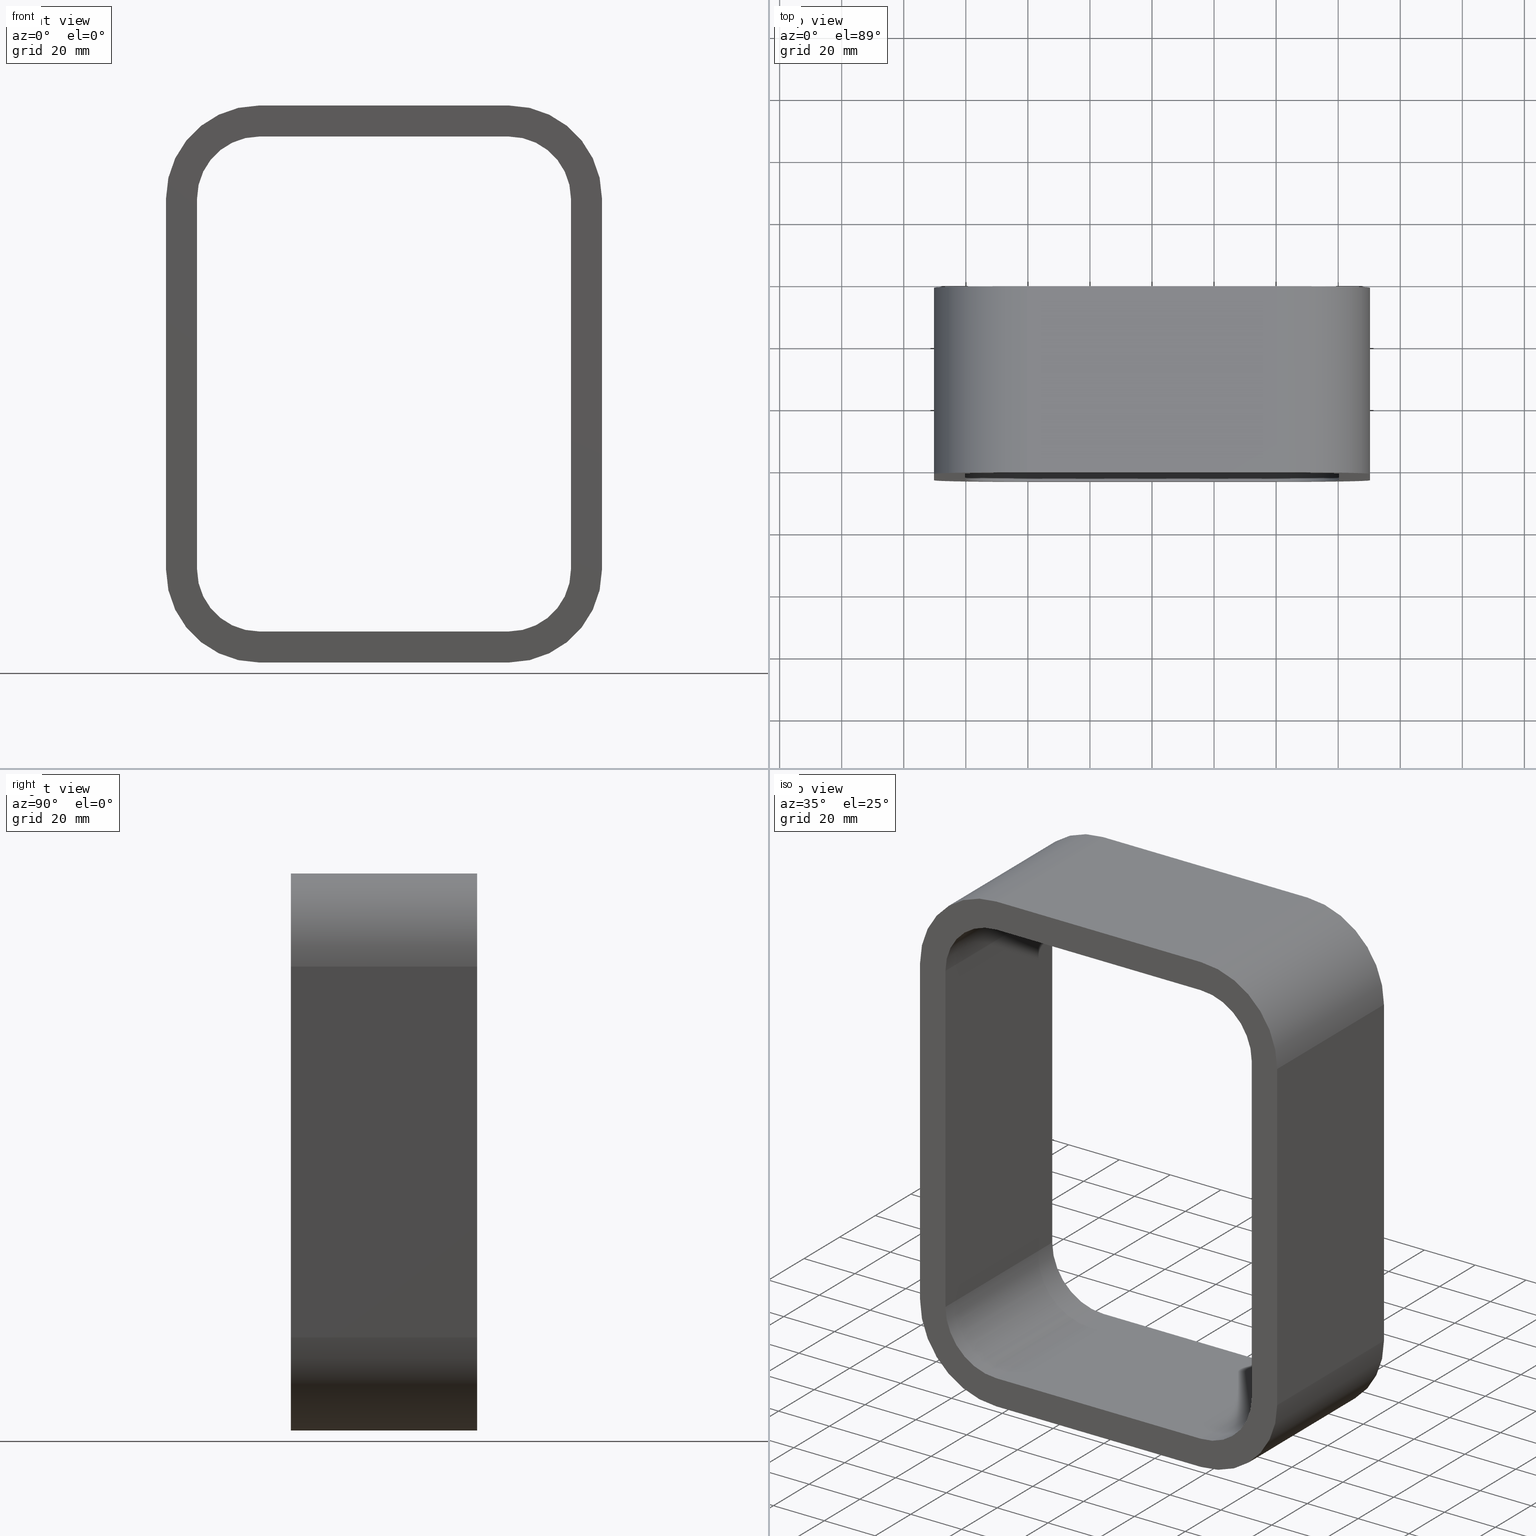
[diagram: canonical four-view strip — front | top / right | iso, engineering-drawing reading convention]
A machine part, canonical four-view strip (front | top / right | iso — engineering-drawing reading convention). The complete STEP part file that produces these views, byte-faithful:
ISO-10303-21;
HEADER;
/****************************************************************
 * Generated by software with PDElib inside                    *
 * PDElib Version v51a, created Wed 11/30/2011                  *
 * ITI Transcendata (http://www.transcendata.com/)              *
 ****************************************************************/
FILE_DESCRIPTION((''),'2;1');
FILE_NAME('N:\\Projects\\Ongoing_Projects\\12403 Transit Designer\\Product-data\\Product Data\\Transit designer Cad Generator\\CreatedFiles\\STEP\\SRCR20-4X1.stp','2014-10-31T08:48:50',(''),(''),'Autodesk Inventor 2013','Autodesk Inventor 2013','');
FILE_SCHEMA(('AUTOMOTIVE_DESIGN { 1 0 10303 214 1 1 1 1 }'));
ENDSEC;
DATA;
#5=APPLICATION_CONTEXT('automotive design');
#6=APPLICATION_PROTOCOL_DEFINITION('International Standard','automotive_design',2001,#5);
#7=PRODUCT_CONTEXT('',#5,'mechanical');
#8=PRODUCT('GH-ISO','GH-ISO',$,(#7));
#9=PRODUCT_RELATED_PRODUCT_CATEGORY('part',$,(#8));
#10=PRODUCT_DEFINITION_FORMATION('',$,#8);
#11=PRODUCT_DEFINITION_CONTEXT('part definition',#5,'design');
#12=PRODUCT_DEFINITION('',$,#10,#11);
#18=(NAMED_UNIT(*)PLANE_ANGLE_UNIT()SI_UNIT($,.RADIAN.));
#19=DIMENSIONAL_EXPONENTS(0.0,0.0,0.0,0.0,0.0,0.0,0.0);
#20=PLANE_ANGLE_MEASURE_WITH_UNIT(PLANE_ANGLE_MEASURE(0.0174532925),#18);
#24=(CONVERSION_BASED_UNIT('DEGREE',#20)NAMED_UNIT(#19)PLANE_ANGLE_UNIT());
#28=(NAMED_UNIT(*)SI_UNIT($,.STERADIAN.)SOLID_ANGLE_UNIT());
#32=(LENGTH_UNIT()NAMED_UNIT(*)SI_UNIT(.MILLI.,.METRE.));
#34=UNCERTAINTY_MEASURE_WITH_UNIT(LENGTH_MEASURE(0.01),#32,'DISTANCE_ACCURACY_VALUE','');
#36=(GEOMETRIC_REPRESENTATION_CONTEXT(3)GLOBAL_UNCERTAINTY_ASSIGNED_CONTEXT((#34))GLOBAL_UNIT_ASSIGNED_CONTEXT((#24,#28,#32))REPRESENTATION_CONTEXT('None','None'));
#37=AXIS2_PLACEMENT_3D('',#38,#39,#40);
#38=CARTESIAN_POINT('',(0.0,0.0,0.0));
#39=DIRECTION('',(0.0,0.0,1.0));
#40=DIRECTION('',(1.0,0.0,0.0));
#41=SHAPE_REPRESENTATION('',(#37),#36);
#42=PRODUCT_DEFINITION_SHAPE('','',#12);
#43=SHAPE_DEFINITION_REPRESENTATION(#42,#41);
#49=(NAMED_UNIT(*)PLANE_ANGLE_UNIT()SI_UNIT($,.RADIAN.));
#50=DIMENSIONAL_EXPONENTS(0.0,0.0,0.0,0.0,0.0,0.0,0.0);
#51=PLANE_ANGLE_MEASURE_WITH_UNIT(PLANE_ANGLE_MEASURE(0.0174532925),#49);
#55=(CONVERSION_BASED_UNIT('DEGREE',#51)NAMED_UNIT(#50)PLANE_ANGLE_UNIT());
#59=(NAMED_UNIT(*)SI_UNIT($,.STERADIAN.)SOLID_ANGLE_UNIT());
#63=(LENGTH_UNIT()NAMED_UNIT(*)SI_UNIT(.MILLI.,.METRE.));
#65=UNCERTAINTY_MEASURE_WITH_UNIT(LENGTH_MEASURE(0.000001),#63,'DISTANCE_ACCURACY_VALUE','');
#67=(GEOMETRIC_REPRESENTATION_CONTEXT(3)GLOBAL_UNCERTAINTY_ASSIGNED_CONTEXT((#65))GLOBAL_UNIT_ASSIGNED_CONTEXT((#55,#59,#63))REPRESENTATION_CONTEXT('','3D'));
#68=CARTESIAN_POINT('',(40.249999999999993,0.0,-59.750000000000014));
#69=DIRECTION('',(0.0,1.0,0.0));
#70=DIRECTION('',(0.707106781186547,0.0,-0.707106781186547));
#71=AXIS2_PLACEMENT_3D('',#68,#69,#70);
#72=CYLINDRICAL_SURFACE('',#71,30.000000000000004);
#73=CARTESIAN_POINT('',(40.249999999999993,57.0,-89.750000000000014));
#74=VERTEX_POINT('',#73);
#75=CARTESIAN_POINT('',(70.25,57.0,-59.750000000000014));
#76=VERTEX_POINT('',#75);
#77=CARTESIAN_POINT('',(40.249999999999993,57.0,-59.750000000000014));
#78=DIRECTION('',(0.0,-1.0,0.0));
#79=DIRECTION('',(0.707106781186547,0.0,-0.707106781186547));
#80=AXIS2_PLACEMENT_3D('',#77,#78,#79);
#81=CIRCLE('',#80,30.0);
#82=EDGE_CURVE('',#74,#76,#81,.T.);
#83=ORIENTED_EDGE('',*,*,#82,.T.);
#84=CARTESIAN_POINT('',(70.25,-3.0,-59.750000000000014));
#85=VERTEX_POINT('',#84);
#86=CARTESIAN_POINT('',(70.25,57.0,-59.750000000000014));
#87=DIRECTION('',(0.0,-1.0,0.0));
#88=VECTOR('',#87,60.0);
#89=LINE('',#86,#88);
#90=EDGE_CURVE('',#76,#85,#89,.T.);
#91=ORIENTED_EDGE('',*,*,#90,.T.);
#92=CARTESIAN_POINT('',(40.249999999999993,-3.0,-89.750000000000014));
#93=VERTEX_POINT('',#92);
#94=CARTESIAN_POINT('',(40.249999999999993,-3.0,-59.750000000000014));
#95=DIRECTION('',(0.0,1.0,0.0));
#96=DIRECTION('',(0.707106781186547,0.0,-0.707106781186547));
#97=AXIS2_PLACEMENT_3D('',#94,#95,#96);
#98=CIRCLE('',#97,30.0);
#99=EDGE_CURVE('',#85,#93,#98,.T.);
#100=ORIENTED_EDGE('',*,*,#99,.T.);
#101=CARTESIAN_POINT('',(40.249999999999993,-3.0,-89.750000000000014));
#102=DIRECTION('',(0.0,1.0,0.0));
#103=VECTOR('',#102,60.0);
#104=LINE('',#101,#103);
#105=EDGE_CURVE('',#93,#74,#104,.T.);
#106=ORIENTED_EDGE('',*,*,#105,.T.);
#107=EDGE_LOOP('',(#83,#91,#100,#106));
#108=FACE_OUTER_BOUND('',#107,.T.);
#109=ADVANCED_FACE('',(#108),#72,.T.);
#110=CARTESIAN_POINT('',(-8.611167E-015,-3.0,0.0));
#111=DIRECTION('',(0.0,1.0,0.0));
#112=DIRECTION('',(0.0,0.0,1.0));
#113=AXIS2_PLACEMENT_3D('',#110,#111,#112);
#114=PLANE('',#113);
#115=ORIENTED_EDGE('',*,*,#99,.F.);
#116=CARTESIAN_POINT('',(70.25,-3.0,59.750000000000014));
#117=VERTEX_POINT('',#116);
#118=CARTESIAN_POINT('',(70.25,-3.0,-59.750000000000014));
#119=DIRECTION('',(0.0,0.0,1.0));
#120=VECTOR('',#119,119.50000000000003);
#121=LINE('',#118,#120);
#122=EDGE_CURVE('',#85,#117,#121,.T.);
#123=ORIENTED_EDGE('',*,*,#122,.T.);
#124=CARTESIAN_POINT('',(40.249999999999993,-3.0,89.750000000000014));
#125=VERTEX_POINT('',#124);
#126=CARTESIAN_POINT('',(40.249999999999993,-3.0,59.750000000000014));
#127=DIRECTION('',(0.0,1.0,0.0));
#128=DIRECTION('',(0.707106781186547,0.0,0.707106781186547));
#129=AXIS2_PLACEMENT_3D('',#126,#127,#128);
#130=CIRCLE('',#129,30.0);
#131=EDGE_CURVE('',#125,#117,#130,.T.);
#132=ORIENTED_EDGE('',*,*,#131,.F.);
#133=CARTESIAN_POINT('',(-40.250000000000014,-3.0,89.750000000000014));
#134=VERTEX_POINT('',#133);
#135=CARTESIAN_POINT('',(40.249999999999986,-3.0,89.750000000000014));
#136=DIRECTION('',(-1.0,0.0,0.0));
#137=VECTOR('',#136,80.5);
#138=LINE('',#135,#137);
#139=EDGE_CURVE('',#125,#134,#138,.T.);
#140=ORIENTED_EDGE('',*,*,#139,.T.);
#141=CARTESIAN_POINT('',(-70.250000000000014,-3.0,59.750000000000014));
#142=VERTEX_POINT('',#141);
#143=CARTESIAN_POINT('',(-40.250000000000014,-3.0,59.750000000000014));
#144=DIRECTION('',(0.0,1.0,0.0));
#145=DIRECTION('',(-0.707106781186547,0.0,0.707106781186547));
#146=AXIS2_PLACEMENT_3D('',#143,#144,#145);
#147=CIRCLE('',#146,30.0);
#148=EDGE_CURVE('',#142,#134,#147,.T.);
#149=ORIENTED_EDGE('',*,*,#148,.F.);
#150=CARTESIAN_POINT('',(-70.250000000000014,-3.0,-59.750000000000014));
#151=VERTEX_POINT('',#150);
#152=CARTESIAN_POINT('',(-70.250000000000014,-3.0,59.750000000000014));
#153=DIRECTION('',(0.0,0.0,-1.0));
#154=VECTOR('',#153,119.50000000000003);
#155=LINE('',#152,#154);
#156=EDGE_CURVE('',#142,#151,#155,.T.);
#157=ORIENTED_EDGE('',*,*,#156,.T.);
#158=CARTESIAN_POINT('',(-40.250000000000014,-3.0,-89.750000000000014));
#159=VERTEX_POINT('',#158);
#160=CARTESIAN_POINT('',(-40.250000000000014,-3.0,-59.750000000000014));
#161=DIRECTION('',(0.0,1.0,0.0));
#162=DIRECTION('',(-0.707106781186547,0.0,-0.707106781186547));
#163=AXIS2_PLACEMENT_3D('',#160,#161,#162);
#164=CIRCLE('',#163,30.0);
#165=EDGE_CURVE('',#159,#151,#164,.T.);
#166=ORIENTED_EDGE('',*,*,#165,.F.);
#167=CARTESIAN_POINT('',(-40.25,-3.0,-89.750000000000014));
#168=DIRECTION('',(1.0,0.0,0.0));
#169=VECTOR('',#168,80.5);
#170=LINE('',#167,#169);
#171=EDGE_CURVE('',#159,#93,#170,.T.);
#172=ORIENTED_EDGE('',*,*,#171,.T.);
#173=EDGE_LOOP('',(#115,#123,#132,#140,#149,#157,#166,#172));
#174=FACE_OUTER_BOUND('',#173,.T.);
#175=CARTESIAN_POINT('',(60.25,-3.0,59.750000000000014));
#176=VERTEX_POINT('',#175);
#177=CARTESIAN_POINT('',(60.25,-3.0,-59.75));
#178=VERTEX_POINT('',#177);
#179=CARTESIAN_POINT('',(60.25,-3.0,59.750000000000014));
#180=DIRECTION('',(0.0,0.0,-1.0));
#181=VECTOR('',#180,119.5);
#182=LINE('',#179,#181);
#183=EDGE_CURVE('',#176,#178,#182,.T.);
#184=ORIENTED_EDGE('',*,*,#183,.T.);
#185=CARTESIAN_POINT('',(40.25,-3.0,-79.75));
#186=VERTEX_POINT('',#185);
#187=CARTESIAN_POINT('',(40.25,-3.0,-59.75));
#188=DIRECTION('',(0.0,-1.0,0.0));
#189=DIRECTION('',(0.707106781186547,0.0,-0.707106781186547));
#190=AXIS2_PLACEMENT_3D('',#187,#188,#189);
#191=CIRCLE('',#190,19.999999999999996);
#192=EDGE_CURVE('',#186,#178,#191,.T.);
#193=ORIENTED_EDGE('',*,*,#192,.F.);
#194=CARTESIAN_POINT('',(-40.25,-3.0,-79.75));
#195=VERTEX_POINT('',#194);
#196=CARTESIAN_POINT('',(40.25,-3.0,-79.75));
#197=DIRECTION('',(-1.0,0.0,0.0));
#198=VECTOR('',#197,80.5);
#199=LINE('',#196,#198);
#200=EDGE_CURVE('',#186,#195,#199,.T.);
#201=ORIENTED_EDGE('',*,*,#200,.T.);
#202=CARTESIAN_POINT('',(-60.250000000000014,-3.0,-59.75));
#203=VERTEX_POINT('',#202);
#204=CARTESIAN_POINT('',(-40.25,-3.0,-59.75));
#205=DIRECTION('',(0.0,-1.0,0.0));
#206=DIRECTION('',(-0.707106781186547,0.0,-0.707106781186547));
#207=AXIS2_PLACEMENT_3D('',#204,#205,#206);
#208=CIRCLE('',#207,19.999999999999996);
#209=EDGE_CURVE('',#203,#195,#208,.T.);
#210=ORIENTED_EDGE('',*,*,#209,.F.);
#211=CARTESIAN_POINT('',(-60.250000000000014,-3.0,59.750000000000021));
#212=VERTEX_POINT('',#211);
#213=CARTESIAN_POINT('',(-60.250000000000014,-3.0,-59.75));
#214=DIRECTION('',(0.0,0.0,1.0));
#215=VECTOR('',#214,119.50000000000003);
#216=LINE('',#213,#215);
#217=EDGE_CURVE('',#203,#212,#216,.T.);
#218=ORIENTED_EDGE('',*,*,#217,.T.);
#219=CARTESIAN_POINT('',(-40.250000000000014,-3.0,79.750000000000014));
#220=VERTEX_POINT('',#219);
#221=CARTESIAN_POINT('',(-40.250000000000014,-3.0,59.750000000000014));
#222=DIRECTION('',(0.0,-1.0,0.0));
#223=DIRECTION('',(-0.707106781186547,0.0,0.707106781186547));
#224=AXIS2_PLACEMENT_3D('',#221,#222,#223);
#225=CIRCLE('',#224,19.999999999999996);
#226=EDGE_CURVE('',#220,#212,#225,.T.);
#227=ORIENTED_EDGE('',*,*,#226,.F.);
#228=CARTESIAN_POINT('',(40.25,-3.0,79.750000000000014));
#229=VERTEX_POINT('',#228);
#230=CARTESIAN_POINT('',(-40.250000000000014,-3.0,79.750000000000014));
#231=DIRECTION('',(1.0,0.0,0.0));
#232=VECTOR('',#231,80.500000000000014);
#233=LINE('',#230,#232);
#234=EDGE_CURVE('',#220,#229,#233,.T.);
#235=ORIENTED_EDGE('',*,*,#234,.T.);
#236=CARTESIAN_POINT('',(40.25,-3.0,59.750000000000014));
#237=DIRECTION('',(0.0,-1.0,0.0));
#238=DIRECTION('',(0.707106781186547,0.0,0.707106781186547));
#239=AXIS2_PLACEMENT_3D('',#236,#237,#238);
#240=CIRCLE('',#239,19.999999999999996);
#241=EDGE_CURVE('',#176,#229,#240,.T.);
#242=ORIENTED_EDGE('',*,*,#241,.F.);
#243=EDGE_LOOP('',(#184,#193,#201,#210,#218,#227,#235,#242));
#244=FACE_BOUND('',#243,.T.);
#245=ADVANCED_FACE('',(#174,#244),#114,.F.);
#246=CARTESIAN_POINT('',(70.25,0.0,89.750000000000014));
#247=DIRECTION('',(1.0,0.0,0.0));
#248=DIRECTION('',(0.0,0.0,-1.0));
#249=AXIS2_PLACEMENT_3D('',#246,#247,#248);
#250=PLANE('',#249);
#251=ORIENTED_EDGE('',*,*,#90,.F.);
#252=CARTESIAN_POINT('',(70.25,57.0,59.750000000000014));
#253=VERTEX_POINT('',#252);
#254=CARTESIAN_POINT('',(70.25,57.0,59.750000000000014));
#255=DIRECTION('',(0.0,0.0,-1.0));
#256=VECTOR('',#255,119.50000000000003);
#257=LINE('',#254,#256);
#258=EDGE_CURVE('',#253,#76,#257,.T.);
#259=ORIENTED_EDGE('',*,*,#258,.F.);
#260=CARTESIAN_POINT('',(70.25,-3.0,59.750000000000014));
#261=DIRECTION('',(0.0,1.0,0.0));
#262=VECTOR('',#261,60.0);
#263=LINE('',#260,#262);
#264=EDGE_CURVE('',#117,#253,#263,.T.);
#265=ORIENTED_EDGE('',*,*,#264,.F.);
#266=ORIENTED_EDGE('',*,*,#122,.F.);
#267=EDGE_LOOP('',(#251,#259,#265,#266));
#268=FACE_OUTER_BOUND('',#267,.T.);
#269=ADVANCED_FACE('',(#268),#250,.T.);
#270=CARTESIAN_POINT('',(40.249999999999993,0.0,59.750000000000014));
#271=DIRECTION('',(0.0,-1.0,0.0));
#272=DIRECTION('',(0.707106781186547,0.0,0.707106781186547));
#273=AXIS2_PLACEMENT_3D('',#270,#271,#272);
#274=CYLINDRICAL_SURFACE('',#273,30.000000000000004);
#275=ORIENTED_EDGE('',*,*,#131,.T.);
#276=ORIENTED_EDGE('',*,*,#264,.T.);
#277=CARTESIAN_POINT('',(40.249999999999993,57.0,89.750000000000014));
#278=VERTEX_POINT('',#277);
#279=CARTESIAN_POINT('',(40.249999999999993,57.0,59.750000000000014));
#280=DIRECTION('',(0.0,-1.0,0.0));
#281=DIRECTION('',(0.707106781186547,0.0,0.707106781186547));
#282=AXIS2_PLACEMENT_3D('',#279,#280,#281);
#283=CIRCLE('',#282,30.0);
#284=EDGE_CURVE('',#253,#278,#283,.T.);
#285=ORIENTED_EDGE('',*,*,#284,.T.);
#286=CARTESIAN_POINT('',(40.249999999999993,57.0,89.750000000000014));
#287=DIRECTION('',(0.0,-1.0,0.0));
#288=VECTOR('',#287,60.0);
#289=LINE('',#286,#288);
#290=EDGE_CURVE('',#278,#125,#289,.T.);
#291=ORIENTED_EDGE('',*,*,#290,.T.);
#292=EDGE_LOOP('',(#275,#276,#285,#291));
#293=FACE_OUTER_BOUND('',#292,.T.);
#294=ADVANCED_FACE('',(#293),#274,.T.);
#295=CARTESIAN_POINT('',(-40.250000000000014,0.0,-59.750000000000014));
#296=DIRECTION('',(0.0,1.0,0.0));
#297=DIRECTION('',(-0.707106781186547,0.0,-0.707106781186547));
#298=AXIS2_PLACEMENT_3D('',#295,#296,#297);
#299=CYLINDRICAL_SURFACE('',#298,30.000000000000004);
#300=CARTESIAN_POINT('',(-70.250000000000014,57.0,-59.750000000000014));
#301=VERTEX_POINT('',#300);
#302=CARTESIAN_POINT('',(-40.250000000000014,57.0,-89.750000000000014));
#303=VERTEX_POINT('',#302);
#304=CARTESIAN_POINT('',(-40.250000000000014,57.0,-59.750000000000014));
#305=DIRECTION('',(0.0,-1.0,0.0));
#306=DIRECTION('',(-0.707106781186547,0.0,-0.707106781186547));
#307=AXIS2_PLACEMENT_3D('',#304,#305,#306);
#308=CIRCLE('',#307,30.0);
#309=EDGE_CURVE('',#301,#303,#308,.T.);
#310=ORIENTED_EDGE('',*,*,#309,.T.);
#311=CARTESIAN_POINT('',(-40.250000000000014,57.0,-89.750000000000014));
#312=DIRECTION('',(0.0,-1.0,0.0));
#313=VECTOR('',#312,60.0);
#314=LINE('',#311,#313);
#315=EDGE_CURVE('',#303,#159,#314,.T.);
#316=ORIENTED_EDGE('',*,*,#315,.T.);
#317=ORIENTED_EDGE('',*,*,#165,.T.);
#318=CARTESIAN_POINT('',(-70.250000000000014,-3.0,-59.750000000000014));
#319=DIRECTION('',(0.0,1.0,0.0));
#320=VECTOR('',#319,60.0);
#321=LINE('',#318,#320);
#322=EDGE_CURVE('',#151,#301,#321,.T.);
#323=ORIENTED_EDGE('',*,*,#322,.T.);
#324=EDGE_LOOP('',(#310,#316,#317,#323));
#325=FACE_OUTER_BOUND('',#324,.T.);
#326=ADVANCED_FACE('',(#325),#299,.T.);
#327=CARTESIAN_POINT('',(-70.250000000000014,0.0,-89.750000000000014));
#328=DIRECTION('',(-1.0,0.0,0.0));
#329=DIRECTION('',(0.0,0.0,1.0));
#330=AXIS2_PLACEMENT_3D('',#327,#328,#329);
#331=PLANE('',#330);
#332=ORIENTED_EDGE('',*,*,#322,.F.);
#333=ORIENTED_EDGE('',*,*,#156,.F.);
#334=CARTESIAN_POINT('',(-70.250000000000014,57.0,59.750000000000014));
#335=VERTEX_POINT('',#334);
#336=CARTESIAN_POINT('',(-70.250000000000014,57.0,59.750000000000014));
#337=DIRECTION('',(0.0,-1.0,0.0));
#338=VECTOR('',#337,60.0);
#339=LINE('',#336,#338);
#340=EDGE_CURVE('',#335,#142,#339,.T.);
#341=ORIENTED_EDGE('',*,*,#340,.F.);
#342=CARTESIAN_POINT('',(-70.250000000000014,57.0,-59.750000000000014));
#343=DIRECTION('',(0.0,0.0,1.0));
#344=VECTOR('',#343,119.50000000000003);
#345=LINE('',#342,#344);
#346=EDGE_CURVE('',#301,#335,#345,.T.);
#347=ORIENTED_EDGE('',*,*,#346,.F.);
#348=EDGE_LOOP('',(#332,#333,#341,#347));
#349=FACE_OUTER_BOUND('',#348,.T.);
#350=ADVANCED_FACE('',(#349),#331,.T.);
#351=CARTESIAN_POINT('',(-40.250000000000014,0.0,59.750000000000014));
#352=DIRECTION('',(0.0,1.0,0.0));
#353=DIRECTION('',(-0.707106781186547,0.0,0.707106781186547));
#354=AXIS2_PLACEMENT_3D('',#351,#352,#353);
#355=CYLINDRICAL_SURFACE('',#354,30.000000000000004);
#356=CARTESIAN_POINT('',(-40.250000000000014,57.0,89.750000000000014));
#357=VERTEX_POINT('',#356);
#358=CARTESIAN_POINT('',(-40.250000000000014,57.0,59.750000000000014));
#359=DIRECTION('',(0.0,-1.0,0.0));
#360=DIRECTION('',(-0.707106781186547,0.0,0.707106781186547));
#361=AXIS2_PLACEMENT_3D('',#358,#359,#360);
#362=CIRCLE('',#361,30.0);
#363=EDGE_CURVE('',#357,#335,#362,.T.);
#364=ORIENTED_EDGE('',*,*,#363,.T.);
#365=ORIENTED_EDGE('',*,*,#340,.T.);
#366=ORIENTED_EDGE('',*,*,#148,.T.);
#367=CARTESIAN_POINT('',(-40.250000000000014,-3.0,89.750000000000014));
#368=DIRECTION('',(0.0,1.0,0.0));
#369=VECTOR('',#368,60.0);
#370=LINE('',#367,#369);
#371=EDGE_CURVE('',#134,#357,#370,.T.);
#372=ORIENTED_EDGE('',*,*,#371,.T.);
#373=EDGE_LOOP('',(#364,#365,#366,#372));
#374=FACE_OUTER_BOUND('',#373,.T.);
#375=ADVANCED_FACE('',(#374),#355,.T.);
#376=CARTESIAN_POINT('',(-70.250000000000014,0.0,89.750000000000014));
#377=DIRECTION('',(0.0,0.0,1.0));
#378=DIRECTION('',(1.0,0.0,0.0));
#379=AXIS2_PLACEMENT_3D('',#376,#377,#378);
#380=PLANE('',#379);
#381=ORIENTED_EDGE('',*,*,#290,.F.);
#382=CARTESIAN_POINT('',(-40.250000000000014,57.0,89.750000000000014));
#383=DIRECTION('',(1.0,0.0,0.0));
#384=VECTOR('',#383,80.5);
#385=LINE('',#382,#384);
#386=EDGE_CURVE('',#357,#278,#385,.T.);
#387=ORIENTED_EDGE('',*,*,#386,.F.);
#388=ORIENTED_EDGE('',*,*,#371,.F.);
#389=ORIENTED_EDGE('',*,*,#139,.F.);
#390=EDGE_LOOP('',(#381,#387,#388,#389));
#391=FACE_OUTER_BOUND('',#390,.T.);
#392=ADVANCED_FACE('',(#391),#380,.T.);
#393=CARTESIAN_POINT('',(-40.250000000000014,0.0,59.750000000000014));
#394=DIRECTION('',(0.0,1.0,0.0));
#395=DIRECTION('',(-0.707106781186547,0.0,0.707106781186547));
#396=AXIS2_PLACEMENT_3D('',#393,#394,#395);
#397=CYLINDRICAL_SURFACE('',#396,20.0);
#398=ORIENTED_EDGE('',*,*,#226,.T.);
#399=CARTESIAN_POINT('',(-60.250000000000014,57.0,59.750000000000021));
#400=VERTEX_POINT('',#399);
#401=CARTESIAN_POINT('',(-60.250000000000014,-3.0,59.750000000000014));
#402=DIRECTION('',(0.0,1.0,0.0));
#403=VECTOR('',#402,60.0);
#404=LINE('',#401,#403);
#405=EDGE_CURVE('',#212,#400,#404,.T.);
#406=ORIENTED_EDGE('',*,*,#405,.T.);
#407=CARTESIAN_POINT('',(-40.250000000000014,57.0,79.750000000000014));
#408=VERTEX_POINT('',#407);
#409=CARTESIAN_POINT('',(-40.250000000000014,57.0,59.750000000000014));
#410=DIRECTION('',(0.0,1.0,0.0));
#411=DIRECTION('',(-0.707106781186547,0.0,0.707106781186547));
#412=AXIS2_PLACEMENT_3D('',#409,#410,#411);
#413=CIRCLE('',#412,19.999999999999996);
#414=EDGE_CURVE('',#400,#408,#413,.T.);
#415=ORIENTED_EDGE('',*,*,#414,.T.);
#416=CARTESIAN_POINT('',(-40.250000000000014,57.0,79.750000000000014));
#417=DIRECTION('',(0.0,-1.0,0.0));
#418=VECTOR('',#417,60.0);
#419=LINE('',#416,#418);
#420=EDGE_CURVE('',#408,#220,#419,.T.);
#421=ORIENTED_EDGE('',*,*,#420,.T.);
#422=EDGE_LOOP('',(#398,#406,#415,#421));
#423=FACE_OUTER_BOUND('',#422,.T.);
#424=ADVANCED_FACE('',(#423),#397,.F.);
#425=CARTESIAN_POINT('',(-60.250000000000014,0.0,-79.75));
#426=DIRECTION('',(-1.0,0.0,0.0));
#427=DIRECTION('',(0.0,0.0,1.0));
#428=AXIS2_PLACEMENT_3D('',#425,#426,#427);
#429=PLANE('',#428);
#430=ORIENTED_EDGE('',*,*,#405,.F.);
#431=ORIENTED_EDGE('',*,*,#217,.F.);
#432=CARTESIAN_POINT('',(-60.250000000000014,57.0,-59.75));
#433=VERTEX_POINT('',#432);
#434=CARTESIAN_POINT('',(-60.250000000000014,57.0,-59.75));
#435=DIRECTION('',(0.0,-1.0,0.0));
#436=VECTOR('',#435,60.0);
#437=LINE('',#434,#436);
#438=EDGE_CURVE('',#433,#203,#437,.T.);
#439=ORIENTED_EDGE('',*,*,#438,.F.);
#440=CARTESIAN_POINT('',(-60.250000000000014,57.0,59.750000000000028));
#441=DIRECTION('',(0.0,0.0,-1.0));
#442=VECTOR('',#441,119.50000000000003);
#443=LINE('',#440,#442);
#444=EDGE_CURVE('',#400,#433,#443,.T.);
#445=ORIENTED_EDGE('',*,*,#444,.F.);
#446=EDGE_LOOP('',(#430,#431,#439,#445));
#447=FACE_OUTER_BOUND('',#446,.T.);
#448=ADVANCED_FACE('',(#447),#429,.F.);
#449=CARTESIAN_POINT('',(40.25,0.0,59.750000000000014));
#450=DIRECTION('',(0.0,1.0,0.0));
#451=DIRECTION('',(0.707106781186547,0.0,0.707106781186547));
#452=AXIS2_PLACEMENT_3D('',#449,#450,#451);
#453=CYLINDRICAL_SURFACE('',#452,20.0);
#454=ORIENTED_EDGE('',*,*,#241,.T.);
#455=CARTESIAN_POINT('',(40.25,57.0,79.750000000000014));
#456=VERTEX_POINT('',#455);
#457=CARTESIAN_POINT('',(40.25,-3.0,79.750000000000014));
#458=DIRECTION('',(0.0,1.0,0.0));
#459=VECTOR('',#458,60.0);
#460=LINE('',#457,#459);
#461=EDGE_CURVE('',#229,#456,#460,.T.);
#462=ORIENTED_EDGE('',*,*,#461,.T.);
#463=CARTESIAN_POINT('',(60.25,57.0,59.750000000000014));
#464=VERTEX_POINT('',#463);
#465=CARTESIAN_POINT('',(40.25,57.0,59.750000000000014));
#466=DIRECTION('',(0.0,1.0,0.0));
#467=DIRECTION('',(0.707106781186547,0.0,0.707106781186547));
#468=AXIS2_PLACEMENT_3D('',#465,#466,#467);
#469=CIRCLE('',#468,19.999999999999996);
#470=EDGE_CURVE('',#456,#464,#469,.T.);
#471=ORIENTED_EDGE('',*,*,#470,.T.);
#472=CARTESIAN_POINT('',(60.25,57.0,59.750000000000014));
#473=DIRECTION('',(0.0,-1.0,0.0));
#474=VECTOR('',#473,60.0);
#475=LINE('',#472,#474);
#476=EDGE_CURVE('',#464,#176,#475,.T.);
#477=ORIENTED_EDGE('',*,*,#476,.T.);
#478=EDGE_LOOP('',(#454,#462,#471,#477));
#479=FACE_OUTER_BOUND('',#478,.T.);
#480=ADVANCED_FACE('',(#479),#453,.F.);
#481=CARTESIAN_POINT('',(-60.250000000000014,0.0,79.750000000000014));
#482=DIRECTION('',(0.0,0.0,1.0));
#483=DIRECTION('',(1.0,0.0,0.0));
#484=AXIS2_PLACEMENT_3D('',#481,#482,#483);
#485=PLANE('',#484);
#486=ORIENTED_EDGE('',*,*,#420,.F.);
#487=CARTESIAN_POINT('',(40.25,57.0,79.750000000000014));
#488=DIRECTION('',(-1.0,0.0,0.0));
#489=VECTOR('',#488,80.500000000000014);
#490=LINE('',#487,#489);
#491=EDGE_CURVE('',#456,#408,#490,.T.);
#492=ORIENTED_EDGE('',*,*,#491,.F.);
#493=ORIENTED_EDGE('',*,*,#461,.F.);
#494=ORIENTED_EDGE('',*,*,#234,.F.);
#495=EDGE_LOOP('',(#486,#492,#493,#494));
#496=FACE_OUTER_BOUND('',#495,.T.);
#497=ADVANCED_FACE('',(#496),#485,.F.);
#498=CARTESIAN_POINT('',(-40.25,0.0,-59.75));
#499=DIRECTION('',(0.0,1.0,0.0));
#500=DIRECTION('',(-0.707106781186547,0.0,-0.707106781186547));
#501=AXIS2_PLACEMENT_3D('',#498,#499,#500);
#502=CYLINDRICAL_SURFACE('',#501,20.0);
#503=ORIENTED_EDGE('',*,*,#209,.T.);
#504=CARTESIAN_POINT('',(-40.25,57.0,-79.75));
#505=VERTEX_POINT('',#504);
#506=CARTESIAN_POINT('',(-40.25,-3.0,-79.75));
#507=DIRECTION('',(0.0,1.0,0.0));
#508=VECTOR('',#507,60.0);
#509=LINE('',#506,#508);
#510=EDGE_CURVE('',#195,#505,#509,.T.);
#511=ORIENTED_EDGE('',*,*,#510,.T.);
#512=CARTESIAN_POINT('',(-40.25,57.0,-59.75));
#513=DIRECTION('',(0.0,1.0,0.0));
#514=DIRECTION('',(-0.707106781186547,0.0,-0.707106781186547));
#515=AXIS2_PLACEMENT_3D('',#512,#513,#514);
#516=CIRCLE('',#515,19.999999999999996);
#517=EDGE_CURVE('',#505,#433,#516,.T.);
#518=ORIENTED_EDGE('',*,*,#517,.T.);
#519=ORIENTED_EDGE('',*,*,#438,.T.);
#520=EDGE_LOOP('',(#503,#511,#518,#519));
#521=FACE_OUTER_BOUND('',#520,.T.);
#522=ADVANCED_FACE('',(#521),#502,.F.);
#523=CARTESIAN_POINT('',(60.25,0.0,-79.75));
#524=DIRECTION('',(0.0,0.0,-1.0));
#525=DIRECTION('',(-1.0,0.0,0.0));
#526=AXIS2_PLACEMENT_3D('',#523,#524,#525);
#527=PLANE('',#526);
#528=ORIENTED_EDGE('',*,*,#510,.F.);
#529=ORIENTED_EDGE('',*,*,#200,.F.);
#530=CARTESIAN_POINT('',(40.25,57.0,-79.75));
#531=VERTEX_POINT('',#530);
#532=CARTESIAN_POINT('',(40.25,57.0,-79.75));
#533=DIRECTION('',(0.0,-1.0,0.0));
#534=VECTOR('',#533,60.0);
#535=LINE('',#532,#534);
#536=EDGE_CURVE('',#531,#186,#535,.T.);
#537=ORIENTED_EDGE('',*,*,#536,.F.);
#538=CARTESIAN_POINT('',(-40.25,57.0,-79.75));
#539=DIRECTION('',(1.0,0.0,0.0));
#540=VECTOR('',#539,80.5);
#541=LINE('',#538,#540);
#542=EDGE_CURVE('',#505,#531,#541,.T.);
#543=ORIENTED_EDGE('',*,*,#542,.F.);
#544=EDGE_LOOP('',(#528,#529,#537,#543));
#545=FACE_OUTER_BOUND('',#544,.T.);
#546=ADVANCED_FACE('',(#545),#527,.F.);
#547=CARTESIAN_POINT('',(40.25,0.0,-59.75));
#548=DIRECTION('',(0.0,-1.0,0.0));
#549=DIRECTION('',(0.707106781186547,0.0,-0.707106781186547));
#550=AXIS2_PLACEMENT_3D('',#547,#548,#549);
#551=CYLINDRICAL_SURFACE('',#550,20.0);
#552=CARTESIAN_POINT('',(60.25,57.0,-59.75));
#553=VERTEX_POINT('',#552);
#554=CARTESIAN_POINT('',(40.25,57.0,-59.75));
#555=DIRECTION('',(0.0,1.0,0.0));
#556=DIRECTION('',(0.707106781186547,0.0,-0.707106781186547));
#557=AXIS2_PLACEMENT_3D('',#554,#555,#556);
#558=CIRCLE('',#557,19.999999999999996);
#559=EDGE_CURVE('',#553,#531,#558,.T.);
#560=ORIENTED_EDGE('',*,*,#559,.T.);
#561=ORIENTED_EDGE('',*,*,#536,.T.);
#562=ORIENTED_EDGE('',*,*,#192,.T.);
#563=CARTESIAN_POINT('',(60.25,-3.0,-59.75));
#564=DIRECTION('',(0.0,1.0,0.0));
#565=VECTOR('',#564,60.0);
#566=LINE('',#563,#565);
#567=EDGE_CURVE('',#178,#553,#566,.T.);
#568=ORIENTED_EDGE('',*,*,#567,.T.);
#569=EDGE_LOOP('',(#560,#561,#562,#568));
#570=FACE_OUTER_BOUND('',#569,.T.);
#571=ADVANCED_FACE('',(#570),#551,.F.);
#572=CARTESIAN_POINT('',(60.25,0.0,79.750000000000014));
#573=DIRECTION('',(1.0,0.0,0.0));
#574=DIRECTION('',(0.0,0.0,-1.0));
#575=AXIS2_PLACEMENT_3D('',#572,#573,#574);
#576=PLANE('',#575);
#577=ORIENTED_EDGE('',*,*,#476,.F.);
#578=CARTESIAN_POINT('',(60.25,57.0,-59.749999999999993));
#579=DIRECTION('',(0.0,0.0,1.0));
#580=VECTOR('',#579,119.5);
#581=LINE('',#578,#580);
#582=EDGE_CURVE('',#553,#464,#581,.T.);
#583=ORIENTED_EDGE('',*,*,#582,.F.);
#584=ORIENTED_EDGE('',*,*,#567,.F.);
#585=ORIENTED_EDGE('',*,*,#183,.F.);
#586=EDGE_LOOP('',(#577,#583,#584,#585));
#587=FACE_OUTER_BOUND('',#586,.T.);
#588=ADVANCED_FACE('',(#587),#576,.F.);
#589=CARTESIAN_POINT('',(70.25,0.0,-89.750000000000014));
#590=DIRECTION('',(0.0,0.0,-1.0));
#591=DIRECTION('',(-1.0,0.0,0.0));
#592=AXIS2_PLACEMENT_3D('',#589,#590,#591);
#593=PLANE('',#592);
#594=ORIENTED_EDGE('',*,*,#105,.F.);
#595=ORIENTED_EDGE('',*,*,#171,.F.);
#596=ORIENTED_EDGE('',*,*,#315,.F.);
#597=CARTESIAN_POINT('',(40.25,57.0,-89.750000000000014));
#598=DIRECTION('',(-1.0,0.0,0.0));
#599=VECTOR('',#598,80.5);
#600=LINE('',#597,#599);
#601=EDGE_CURVE('',#74,#303,#600,.T.);
#602=ORIENTED_EDGE('',*,*,#601,.F.);
#603=EDGE_LOOP('',(#594,#595,#596,#602));
#604=FACE_OUTER_BOUND('',#603,.T.);
#605=ADVANCED_FACE('',(#604),#593,.T.);
#606=CARTESIAN_POINT('',(-8.611167E-015,57.0,0.0));
#607=DIRECTION('',(0.0,1.0,0.0));
#608=DIRECTION('',(0.0,0.0,1.0));
#609=AXIS2_PLACEMENT_3D('',#606,#607,#608);
#610=PLANE('',#609);
#611=ORIENTED_EDGE('',*,*,#82,.F.);
#612=ORIENTED_EDGE('',*,*,#601,.T.);
#613=ORIENTED_EDGE('',*,*,#309,.F.);
#614=ORIENTED_EDGE('',*,*,#346,.T.);
#615=ORIENTED_EDGE('',*,*,#363,.F.);
#616=ORIENTED_EDGE('',*,*,#386,.T.);
#617=ORIENTED_EDGE('',*,*,#284,.F.);
#618=ORIENTED_EDGE('',*,*,#258,.T.);
#619=EDGE_LOOP('',(#611,#612,#613,#614,#615,#616,#617,#618));
#620=FACE_OUTER_BOUND('',#619,.T.);
#621=ORIENTED_EDGE('',*,*,#582,.T.);
#622=ORIENTED_EDGE('',*,*,#470,.F.);
#623=ORIENTED_EDGE('',*,*,#491,.T.);
#624=ORIENTED_EDGE('',*,*,#414,.F.);
#625=ORIENTED_EDGE('',*,*,#444,.T.);
#626=ORIENTED_EDGE('',*,*,#517,.F.);
#627=ORIENTED_EDGE('',*,*,#542,.T.);
#628=ORIENTED_EDGE('',*,*,#559,.F.);
#629=EDGE_LOOP('',(#621,#622,#623,#624,#625,#626,#627,#628));
#630=FACE_BOUND('',#629,.T.);
#631=ADVANCED_FACE('',(#620,#630),#610,.T.);
#632=CLOSED_SHELL('',(#109,#245,#269,#294,#326,#350,#375,#392,#424,#448,#480,#497,#522,#546,#571,#588,#605,#631));
#633=MANIFOLD_SOLID_BREP('Solid1',#632);
#634=COLOUR_RGB('Silicon Nitride - Polished',0.800000011920929,0.796078443527222,0.701960802078247);
#635=FILL_AREA_STYLE_COLOUR('Silicon Nitride - Polished',#634);
#636=FILL_AREA_STYLE('Silicon Nitride - Polished',(#635));
#637=SURFACE_STYLE_FILL_AREA(#636);
#638=SURFACE_SIDE_STYLE('Silicon Nitride - Polished',(#637));
#639=SURFACE_STYLE_USAGE(.BOTH.,#638);
#640=PRESENTATION_STYLE_ASSIGNMENT((#639));
#641=STYLED_ITEM('',(#640),#633);
#642=MECHANICAL_DESIGN_GEOMETRIC_PRESENTATION_REPRESENTATION('',(#641),#36);
#643=ADVANCED_BREP_SHAPE_REPRESENTATION('ABSR',(#633),#36);
#644=SHAPE_REPRESENTATION_RELATIONSHIP('SRR','None',#643,#41);
ENDSEC;
END-ISO-10303-21;
